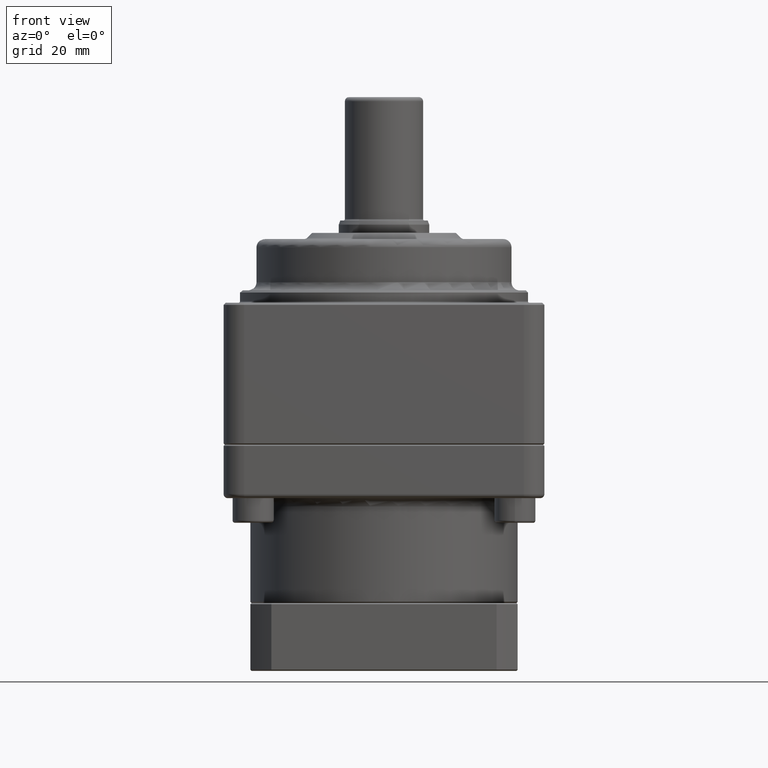
[diagram: clean part render]
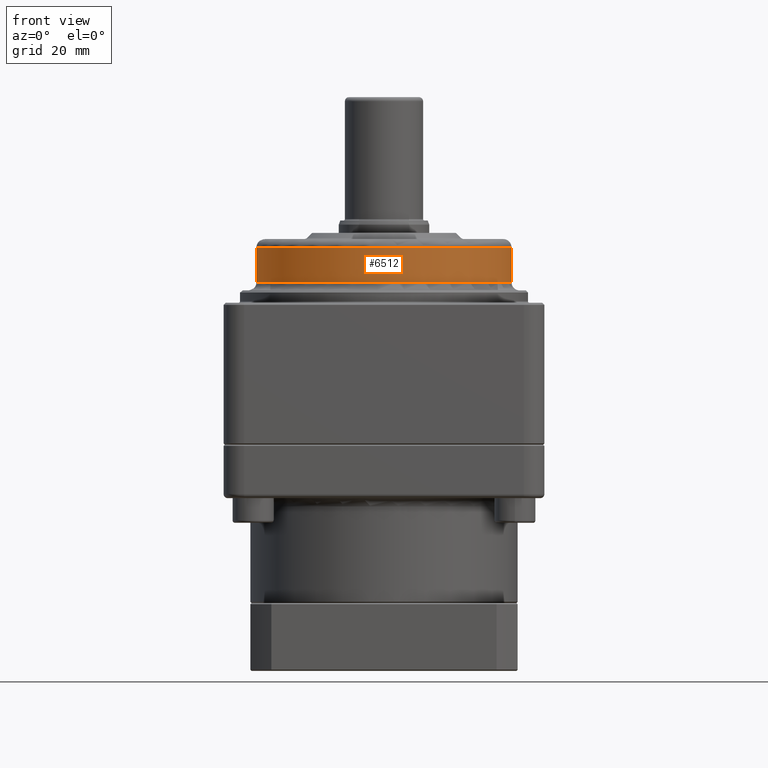
[diagram: same view with one face highlighted and labeled with its STEP entity id]
A machine part, front view. The second image highlights one B-rep face of the part: STEP entity #6512.
In plain terms, the highlighted cylindrical surface (bore or boss wall) has radius 31 mm, axis along (0, 0, 1).
Its self-contained STEP definition (entity closure, byte-faithful):
#6470=CARTESIAN_POINT('',(31.0,-3.796405E-015,39.5));
#6471=VERTEX_POINT('',#6470);
#6472=CARTESIAN_POINT('',(0.0,0.0,39.5));
#6473=DIRECTION('',(0.0,0.0,-1.0));
#6474=DIRECTION('',(-1.0,0.0,0.0));
#6475=AXIS2_PLACEMENT_3D('',#6472,#6473,#6474);
#6476=CIRCLE('',#6475,31.0);
#6477=EDGE_CURVE('',#6471,#6471,#6476,.T.);
#6493=CARTESIAN_POINT('',(0.0,0.0,37.5));
#6494=DIRECTION('',(0.0,0.0,1.0));
#6495=DIRECTION('',(-1.0,0.0,0.0));
#6496=AXIS2_PLACEMENT_3D('',#6493,#6494,#6495);
#6497=CYLINDRICAL_SURFACE('',#6496,31.0);
#6498=CARTESIAN_POINT('',(31.0,3.796405E-015,48.0));
#6499=VERTEX_POINT('',#6498);
#6500=CARTESIAN_POINT('',(0.0,0.0,48.0));
#6501=DIRECTION('',(0.0,0.0,1.0));
#6502=DIRECTION('',(-1.0,0.0,0.0));
#6503=AXIS2_PLACEMENT_3D('',#6500,#6501,#6502);
#6504=CIRCLE('',#6503,31.0);
#6505=EDGE_CURVE('',#6499,#6499,#6504,.T.);
#6506=ORIENTED_EDGE('',*,*,#6505,.F.);
#6507=EDGE_LOOP('',(#6506));
#6508=FACE_OUTER_BOUND('',#6507,.T.);
#6509=ORIENTED_EDGE('',*,*,#6477,.F.);
#6510=EDGE_LOOP('',(#6509));
#6511=FACE_BOUND('',#6510,.T.);
#6512=ADVANCED_FACE('',(#6508,#6511),#6497,.T.);